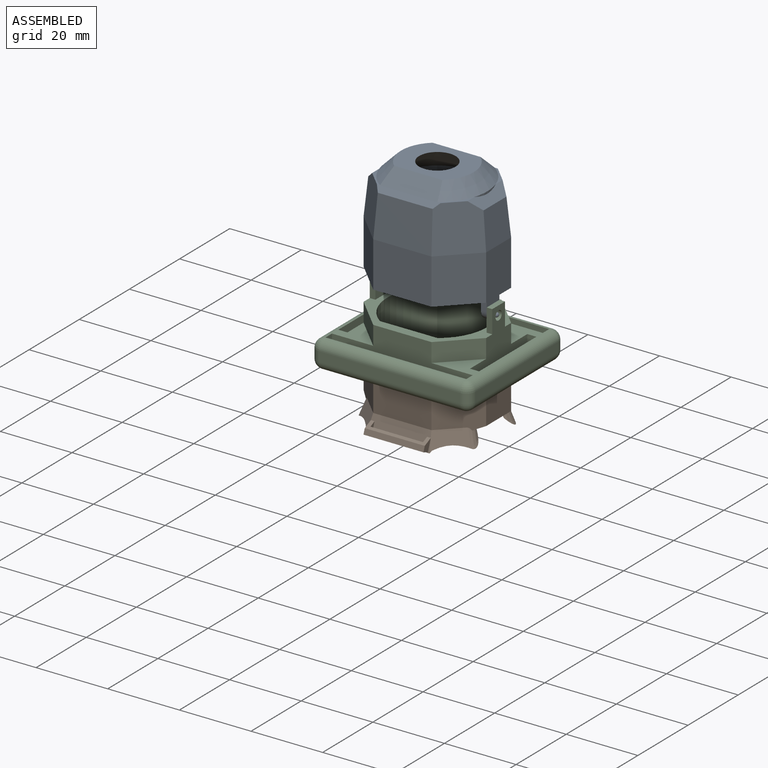
[diagram: assembled view]
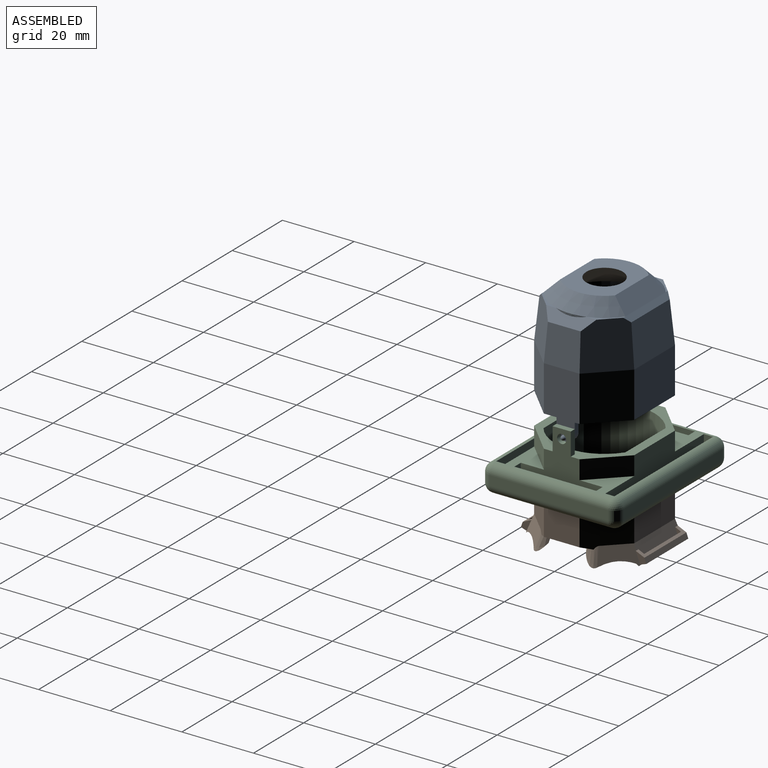
[diagram: assembled view, second angle]
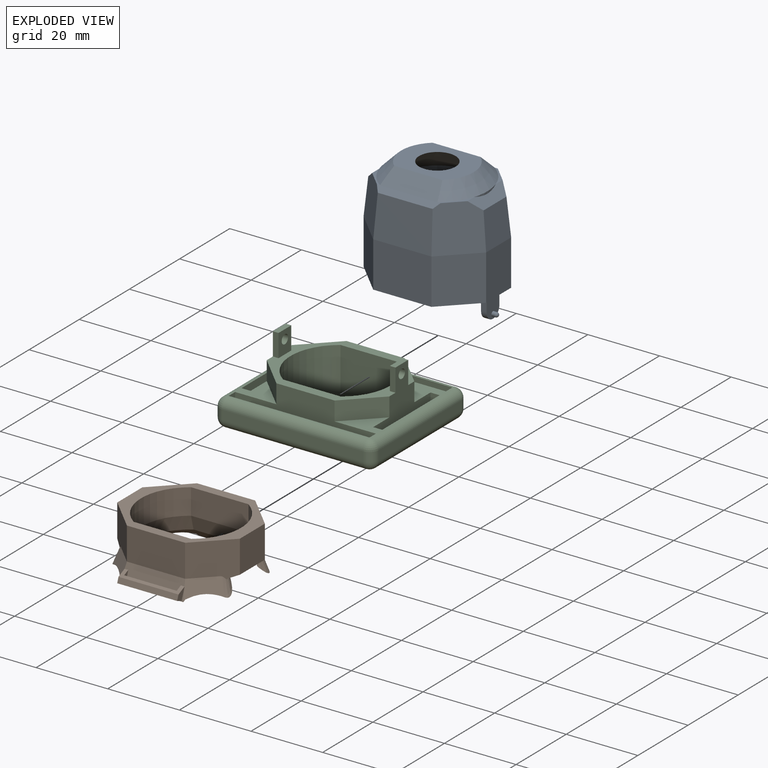
[diagram: exploded view]
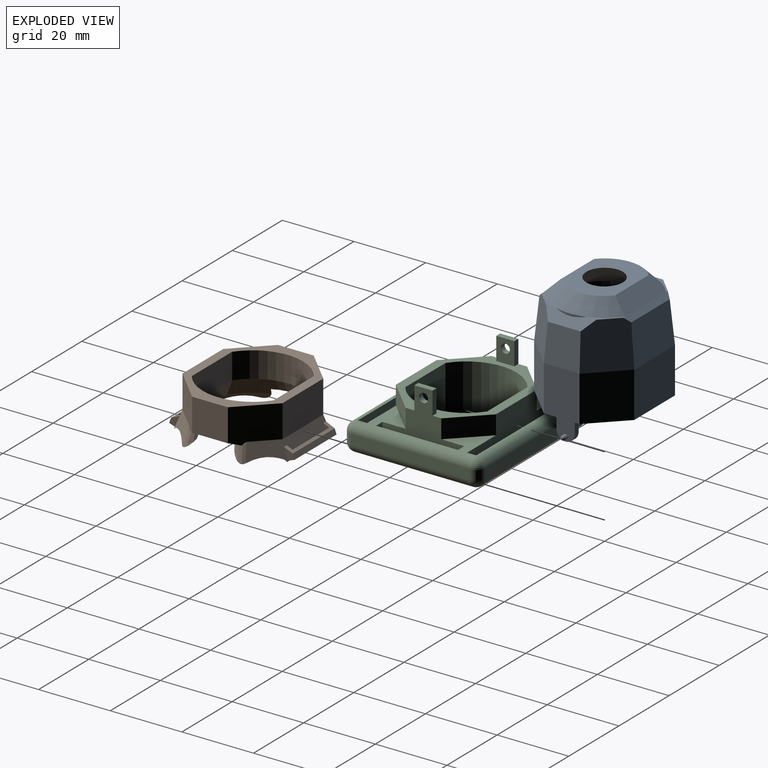
[diagram: exploded view, second angle]
ASSEMBLY  parts=3 mates=2
PART A: 53 faces, bbox 34.4x28.1x35.7 mm
  f0: plane 7.15x5.27mm, normal (0,0,1), area 4.7mm2, adj f28,f33,f35,f48
  f1: plane 7.15x5.27mm, normal (0,0,1), area 4.7mm2, adj f27,f32,f34,f51
  f2: plane 7.15x5.27mm, normal (0,0,1), area 4.7mm2, adj f24,f32,f35,f51
  f3: plane 34.22x27.94mm, normal (0,0,-1), area 221.1mm2, adj f4,f5,f6,f7,f8,f9,f10,f11
  f4: plane 12.7x8.98mm, normal (-0.71,0.71,0), area 161.3mm2, adj f3,f5,f15,f31
  f5: plane 12.7x9.98mm, normal (-1,0,0), area 126.7mm2, adj f3,f4,f6,f30
  f6: plane 12.7x8.98mm, normal (-0.71,-0.71,0), area 161.3mm2, adj f3,f5,f7,f28
  f7: plane 16.26x12.7mm, normal (0,-1,0), area 206.5mm2, adj f3,f6,f8,f26
  f8: plane 12.7x8.98mm, normal (0.71,-0.71,0), area 161.3mm2, adj f3,f7,f9,f24
  f9: plane 12.7x9.98mm, normal (1,0,0), area 126.7mm2, adj f3,f8,f10,f25
  f10: plane 12.7x8.98mm, normal (0.71,0.71,0), area 161.3mm2, adj f3,f9,f15,f27
  f11: plane 22.86x16.06mm, normal (0,1,0), area 367.2mm2, adj f3,f12,f14,f43,f47
  f12: cylinder r=13.97mm len=22.86mm, axis (0,0,-1), area 612mm2, adj f3,f11,f13,f43
  f13: plane 22.86x16.06mm, normal (0,-1,0), area 367.2mm2, adj f3,f12,f14,f43,f47
  f14: cylinder r=13.97mm len=22.86mm, axis (0,0,-1), area 612mm2, adj f3,f11,f13,f47
  f15: plane 16.26x12.7mm, normal (0,1,0), area 206.5mm2, adj f3,f4,f10,f29
  f16: plane 7.15x5.27mm, normal (0,0,1), area 4.7mm2, adj f31,f33,f34,f48
  f17: plane 6.35x5.08mm, normal (-1,0,0), area 29.5mm2, adj f3,f18,f20,f22
  f18: plane 3.81x1.57mm, normal (0,-1,0), area 6mm2, adj f3,f17,f19,f22
  f19: plane 6.35x5.08mm, normal (1,0,0), area 28.2mm2, adj f3,f18,f20,f21,f22
  f20: plane 3.81x1.57mm, normal (0,1,0), area 6mm2, adj f3,f17,f19,f22
  f21: cylinder r=0.64mm len=1.27mm, axis (-1,0,0), area 3.7mm2, adj f19,f23
  f22: cylinder r=2.54mm len=5.08mm, axis (1,0,0), area 12.5mm2, adj f17,f18,f19,f20
  f23: sphere r=0.64mm, area 2.5mm2, adj f21
  f24: plane 12.7x9.45mm, normal (0.7,-0.7,0.1), area 149.7mm2, adj f2,f8,f25,f26,f32,f35
  f25: plane 10.17x9.98mm, normal (1,0,0.1), area 97.7mm2, adj f9,f24,f27,f32
  f26: plane 16.26x11.44mm, normal (0,-1,0.1), area 181.4mm2, adj f7,f24,f28,f35
  f27: plane 12.7x9.45mm, normal (0.7,0.7,0.1), area 149.7mm2, adj f1,f10,f25,f29,f32,f34
  f28: plane 12.7x9.45mm, normal (-0.7,-0.7,0.1), area 149.7mm2, adj f0,f6,f26,f30,f33,f35
  f29: plane 16.26x11.44mm, normal (0,1,0.1), area 181.4mm2, adj f15,f27,f31,f34
  f30: plane 10.17x9.98mm, normal (-1,0,0.1), area 97.7mm2, adj f5,f28,f31,f33
  f31: plane 12.7x9.45mm, normal (-0.7,0.7,0.1), area 149.7mm2, adj f4,f16,f29,f30,f33,f34
  f32: plane 14.01x2.79mm, normal (0.67,0,0.74), area 38.4mm2, adj f1,f2,f24,f25,f27,f44
  f33: plane 14.01x2.79mm, normal (-0.67,0,0.74), area 38.4mm2, adj f0,f16,f28,f30,f31,f45
  f34: plane 17.74x1.4mm, normal (0,0.67,0.74), area 31.1mm2, adj f1,f16,f27,f29,f31,f49
  f35: plane 17.74x1.4mm, normal (0,-0.67,0.74), area 31.1mm2, adj f0,f2,f24,f26,f28,f50
  f36: sphere r=0.64mm, area 2.5mm2, adj f38
  f37: cylinder r=2.54mm len=5.08mm, axis (-1,0,0), area 12.5mm2, adj f39,f40,f41,f42
  f38: cylinder r=0.64mm len=1.27mm, axis (1,0,0), area 3.7mm2, adj f36,f40
  f39: plane 3.81x1.57mm, normal (0,1,0), area 6mm2, adj f3,f37,f40,f42
  f40: plane 6.35x5.08mm, normal (-1,0,0), area 28.2mm2, adj f3,f37,f38,f39,f41
  f41: plane 3.81x1.57mm, normal (0,-1,0), area 6mm2, adj f3,f37,f40,f42
  f42: plane 6.35x5.08mm, normal (1,0,0), area 29.5mm2, adj f3,f37,f39,f41
  f43: plane 22.86x13.97mm, normal (0,0,-1), area 73.6mm2, adj f11,f12,f13,f52
  f44: cylinder r=13.97mm len=8.56mm, axis (0,0,-1), area 3.5mm2, adj f32,f51
  f45: cylinder r=13.97mm len=8.56mm, axis (0,0,-1), area 3.5mm2, adj f33,f48
  f46: plane 20.32x15.24mm, normal (0,0,1), area 196.4mm2, adj f48,f49,f50,f51,f52
  f47: plane 22.86x13.97mm, normal (0,0,-1), area 73.6mm2, adj f11,f13,f14,f52
  f48: cone r=13.97mm half-angle=45deg, axis (0,0,-1), area 117.8mm2, adj f0,f16,f45,f46,f49,f50
  f49: plane 16.23x3.97mm, normal (0,0.71,0.71), area 79.7mm2, adj f34,f46,f48,f51
  f50: plane 16.23x3.97mm, normal (0,-0.71,0.71), area 79.7mm2, adj f35,f46,f48,f51
  f51: cone r=13.97mm half-angle=45deg, axis (0,0,-1), area 117.8mm2, adj f1,f2,f44,f46,f49,f50
  f52: cone r=2.54mm half-angle=45deg, axis (0,0,-1), area 465.8mm2, adj f43,f46,f47
PART B: 51 faces, bbox 36.8x37.6x16.9 mm
  f0: plane 17.76x4.99mm, normal (0,0.94,0.34), area 83.3mm2, adj f1,f2,f3,f4,f10,f21,f22,f26
  f1: plane 3.18x2.93mm, normal (-1,0,0), area 4.6mm2, adj f0,f40,f41,f42
  f2: plane 3.18x2.35mm, normal (-1,0,0), area 3.5mm2, adj f0,f5,f40,f42
  f3: plane 3.18x2.35mm, normal (1,0,0), area 3.5mm2, adj f0,f5,f40,f42
  f4: plane 3.18x2.93mm, normal (1,0,0), area 4.6mm2, adj f0,f40,f41,f42
  f5: plane 14.66x2.01mm, normal (0,-0.94,-0.34), area 31.3mm2, adj f2,f3,f40,f42
  f6: cone r=19.69mm half-angle=45deg, axis (0,0,-1), area 29.4mm2, adj f21,f26,f32,f39
  f7: cone r=19.69mm half-angle=45deg, axis (0,0,-1), area 29.4mm2, adj f23,f29,f31,f37
  f8: plane 10.25x9.3mm, normal (-0.71,0.71,0), area 117.2mm2, adj f10,f14,f20,f21,f35,f39
  f9: plane 10.25x9.3mm, normal (-0.71,-0.71,0), area 117.2mm2, adj f14,f15,f20,f25,f35,f38
  f10: plane 16.26x9.09mm, normal (0,1,0), area 147.8mm2, adj f0,f8,f12,f20
  f11: plane 9.98x9.09mm, normal (1,0,0), area 90.7mm2, adj f12,f13,f20,f34
  f12: plane 10.25x9.3mm, normal (0.71,0.71,0), area 117.2mm2, adj f10,f11,f20,f22,f34,f36
  f13: plane 10.25x9.3mm, normal (0.71,-0.71,0), area 117.2mm2, adj f11,f15,f20,f23,f34,f37
  f14: plane 9.98x9.09mm, normal (-1,0,0), area 90.7mm2, adj f8,f9,f20,f35
  f15: plane 16.26x9.09mm, normal (0,-1,0), area 147.8mm2, adj f9,f13,f20,f24
  f16: cylinder r=13.97mm len=22.86mm, axis (0,0,-1), area 192.4mm2, adj f18,f19,f20,f32
  f17: cylinder r=13.97mm len=22.86mm, axis (0,0,-1), area 192.4mm2, adj f18,f19,f20,f31
  f18: plane 16.06x7.18mm, normal (0,1,0), area 115.4mm2, adj f16,f17,f20,f33
  f19: plane 16.06x7.18mm, normal (0,-1,0), area 115.4mm2, adj f16,f17,f20,f30
  f20: plane 34.22x27.94mm, normal (0,0,1), area 237.1mm2, adj f8,f9,f10,f11,f12,f13,f14,f15
  f21: plane 10.19x10.11mm, normal (-0.66,0.66,0.34), area 36.9mm2, adj f0,f6,f8,f26,f39
  f22: plane 10.19x10.11mm, normal (0.66,0.66,0.34), area 36.9mm2, adj f0,f12,f26,f28,f36
  f23: plane 10.19x10.11mm, normal (0.66,-0.66,0.34), area 36.9mm2, adj f7,f13,f24,f29,f37
  f24: plane 17.76x4.99mm, normal (0,-0.94,0.34), area 83.3mm2, adj f15,f23,f25,f29,f43,f44,f45,f46
  f25: plane 10.19x10.11mm, normal (-0.66,-0.66,0.34), area 36.9mm2, adj f9,f24,f27,f29,f38
  f26: plane 18.33x2.59mm, normal (0,-0.71,-0.71), area 64.5mm2, adj f0,f6,f21,f22,f28,f30
  f27: cone r=19.69mm half-angle=45deg, axis (0,0,-1), area 29.4mm2, adj f25,f29,f32,f38
  f28: cone r=19.69mm half-angle=45deg, axis (0,0,-1), area 29.4mm2, adj f22,f26,f31,f36
  f29: plane 18.33x2.59mm, normal (0,0.71,-0.71), area 64.5mm2, adj f7,f23,f24,f25,f27,f33
  f30: plane 17.19x4.36mm, normal (0,-0.92,-0.38), area 78mm2, adj f19,f26,f31,f32
  f31: cone r=13.97mm half-angle=22.5deg, axis (0,0,-1), area 120.4mm2, adj f7,f17,f28,f30,f33,f34,f36,f37
  f32: cone r=13.97mm half-angle=22.5deg, axis (0,0,-1), area 120.4mm2, adj f6,f16,f27,f30,f33,f35,f38,f39
  f33: plane 17.19x4.36mm, normal (0,0.92,-0.38), area 78mm2, adj f18,f29,f31,f32
  f34: plane 15.15x3.35mm, normal (0.34,0,-0.94), area 30.1mm2, adj f11,f12,f13,f31,f36,f37
  f35: plane 15.15x3.35mm, normal (-0.34,0,-0.94), area 30.1mm2, adj f8,f9,f14,f32,f38,f39
  f36: bspline ~5.29x3.99mm, area 13.4mm2, adj f12,f22,f28,f31,f34
  f37: bspline ~5.29x3.99mm, area 13.4mm2, adj f7,f13,f23,f31,f34
  f38: bspline ~5.29x3.99mm, area 13.4mm2, adj f9,f25,f27,f32,f35
  f39: bspline ~5.29x3.99mm, area 13.4mm2, adj f6,f8,f21,f32,f35
  f40: plane 16.75x2.41mm, normal (0,0.42,0.91), area 18.3mm2, adj f0,f1,f2,f3,f4,f5,f41
  f41: plane 16.75x1.43mm, normal (0,0.94,0.34), area 25.5mm2, adj f1,f4,f40,f42
  f42: plane 16.75x1.78mm, normal (0,0.34,-0.94), area 13mm2, adj f0,f1,f2,f3,f4,f5,f41
  f43: plane 3.18x2.93mm, normal (-1,0,0), area 4.6mm2, adj f24,f48,f49,f50
  f44: plane 3.18x2.35mm, normal (-1,0,0), area 3.5mm2, adj f24,f47,f48,f50
  f45: plane 3.18x2.35mm, normal (1,0,0), area 3.5mm2, adj f24,f47,f48,f50
  f46: plane 3.18x2.93mm, normal (1,0,0), area 4.6mm2, adj f24,f48,f49,f50
  f47: plane 14.66x2.01mm, normal (0,0.94,-0.34), area 31.3mm2, adj f44,f45,f48,f50
  f48: plane 16.75x2.41mm, normal (0,-0.42,0.91), area 18.3mm2, adj f24,f43,f44,f45,f46,f47,f49
  f49: plane 16.75x1.43mm, normal (0,-0.94,0.34), area 25.5mm2, adj f43,f46,f48,f50
  f50: plane 16.75x1.78mm, normal (0,-0.34,-0.94), area 13mm2, adj f24,f43,f44,f45,f46,f47,f49
PART C: 72 faces, bbox 44.4x38.1x19.5 mm
  f0: plane 8.98x8.98mm, normal (-0.71,0.71,0), area 1mm2, adj f2,f6,f15,f71
  f1: plane 8.98x8.98mm, normal (-0.71,-0.71,0), area 1mm2, adj f6,f7,f14,f71
  f2: plane 39.3x13.14mm, normal (0,1,0), area 392.8mm2, adj f0,f4,f11,f15,f16,f17,f18,f21
  f3: plane 22.86x19.49mm, normal (1,0,0), area 258.5mm2, adj f4,f5,f13,f16,f17,f19,f20,f23
  f4: plane 8.98x8.98mm, normal (0.71,0.71,0), area 1mm2, adj f2,f3,f16,f71
  f5: plane 8.98x8.98mm, normal (0.71,-0.71,0), area 1mm2, adj f3,f7,f31,f71
  f6: plane 22.86x19.49mm, normal (-1,0,0), area 258.5mm2, adj f0,f1,f11,f12,f14,f15,f17,f21
  f7: plane 39.3x13.14mm, normal (0,-1,0), area 392.8mm2, adj f1,f5,f12,f13,f14,f17,f22,f23
  f8: cylinder r=13.97mm len=22.86mm, axis (0,0,-1), area 351.7mm2, adj f10,f17,f25,f71
  f9: cylinder r=13.97mm len=22.86mm, axis (0,0,-1), area 351.7mm2, adj f10,f17,f25,f71
  f10: plane 16.06x13.14mm, normal (0,-1,0), area 211mm2, adj f8,f9,f17,f71
  f11: plane 11.52x8.98mm, normal (0,0,1), area 46.8mm2, adj f2,f6,f21,f43,f58
  f12: plane 11.52x8.98mm, normal (0,0,1), area 46.8mm2, adj f6,f7,f22,f44,f58
  f13: plane 11.52x8.98mm, normal (0,0,1), area 46.8mm2, adj f3,f7,f19,f23,f55
  f14: plane 11.52x8.98mm, normal (0,0,-1), area 46.8mm2, adj f1,f6,f7,f44,f54
  f15: plane 11.52x8.98mm, normal (0,0,-1), area 46.8mm2, adj f0,f2,f6,f43,f54
  f16: plane 11.52x8.98mm, normal (0,0,-1), area 46.8mm2, adj f2,f3,f4,f20,f51
  f17: plane 34.22x27.94mm, normal (0,0,1), area 221.1mm2, adj f2,f3,f6,f7,f8,f9,f10,f21
  f18: plane 7.78x2.54mm, normal (-1,0,0), area 19.8mm2, adj f2,f36,f51,f55
  f19: plane 7.78x2.54mm, normal (0,1,0), area 19.8mm2, adj f3,f13,f31,f34
  f20: plane 7.78x2.54mm, normal (0,-1,0), area 19.8mm2, adj f3,f16,f32,f34
  f21: plane 8.98x8.98mm, normal (-0.71,0.71,0), area 67mm2, adj f2,f6,f11,f17
  f22: plane 8.98x8.98mm, normal (-0.71,-0.71,0), area 67mm2, adj f6,f7,f12,f17
  f23: plane 8.98x8.98mm, normal (0.71,-0.71,0), area 67mm2, adj f3,f7,f13,f17
  f24: plane 8.98x8.98mm, normal (0.71,0.71,0), area 67mm2, adj f2,f3,f17,f32
  f25: plane 16.06x13.14mm, normal (0,1,0), area 211mm2, adj f8,f9,f17,f71
  f26: plane 6.35x5.08mm, normal (-1,0,0), area 27.2mm2, adj f17,f27,f28,f29,f30
  f27: plane 6.35x1.57mm, normal (0,-1,0), area 10mm2, adj f3,f17,f26,f29
  f28: plane 6.35x1.57mm, normal (0,1,0), area 10mm2, adj f3,f17,f26,f29
  f29: plane 5.08x1.57mm, normal (0,0,1), area 8mm2, adj f3,f26,f27,f28
  f30: cylinder r=1.27mm len=2.54mm, axis (1,0,0), area 12.5mm2, adj f3,f26
  f31: plane 11.52x8.98mm, normal (0,0,-1), area 46.8mm2, adj f3,f5,f7,f19,f51
  f32: plane 11.52x8.98mm, normal (0,0,1), area 46.8mm2, adj f2,f3,f20,f24,f55
  f33: plane 33.02x2.7mm, normal (1,0,0), area 89.2mm2, adj f51,f55,f60,f63
  f34: plane 22.86x7.78mm, normal (-1,0,0), area 177.9mm2, adj f19,f20,f51,f55
  f35: plane 39.3x2.7mm, normal (0,1,0), area 106.2mm2, adj f53,f57,f60,f66
  f36: plane 39.3x7.78mm, normal (0,-1,0), area 305.8mm2, adj f18,f42,f53,f57
  f37: plane 7.78x2.54mm, normal (-1,0,0), area 19.8mm2, adj f7,f39,f51,f55
  f38: plane 39.3x2.7mm, normal (0,-1,0), area 106.2mm2, adj f52,f56,f63,f69
  f39: plane 39.3x7.78mm, normal (0,1,0), area 305.8mm2, adj f37,f45,f52,f56
  f40: plane 22.86x7.78mm, normal (1,0,0), area 177.9mm2, adj f43,f44,f54,f58
  f41: plane 33.02x2.7mm, normal (-1,0,0), area 89.2mm2, adj f54,f58,f66,f69
  f42: plane 7.78x2.54mm, normal (1,0,0), area 19.8mm2, adj f2,f36,f54,f58
  f43: plane 7.78x2.54mm, normal (0,-1,0), area 19.8mm2, adj f6,f11,f15,f40
  f44: plane 7.78x2.54mm, normal (0,1,0), area 19.8mm2, adj f6,f12,f14,f40
  f45: plane 7.78x2.54mm, normal (1,0,0), area 19.8mm2, adj f7,f39,f54,f58
  f46: plane 6.35x5.08mm, normal (1,0,0), area 27.2mm2, adj f17,f47,f48,f49,f50
  f47: plane 6.35x1.57mm, normal (0,-1,0), area 10mm2, adj f6,f17,f46,f49
  f48: plane 6.35x1.57mm, normal (0,1,0), area 10mm2, adj f6,f17,f46,f49
  f49: plane 5.08x1.57mm, normal (0,0,1), area 8mm2, adj f6,f46,f47,f48
  f50: cylinder r=1.27mm len=2.54mm, axis (-1,0,0), area 12.5mm2, adj f6,f46
  f51: cylinder r=2.54mm len=33.02mm, axis (0,1,0), area 131.7mm2, adj f16,f18,f31,f33,f34,f37,f59,f62
  f52: cylinder r=2.54mm len=39.3mm, axis (1,0,0), area 156.8mm2, adj f38,f39,f62,f68
  f53: cylinder r=2.54mm len=39.3mm, axis (1,0,0), area 156.8mm2, adj f35,f36,f59,f65
  f54: cylinder r=2.54mm len=33.02mm, axis (0,1,0), area 131.7mm2, adj f14,f15,f40,f41,f42,f45,f65,f68
  f55: cylinder r=2.54mm len=33.02mm, axis (0,-1,0), area 131.7mm2, adj f13,f18,f32,f33,f34,f37,f61,f64
  f56: cylinder r=2.54mm len=39.3mm, axis (-1,0,0), area 156.8mm2, adj f38,f39,f64,f70
  f57: cylinder r=2.54mm len=39.3mm, axis (-1,0,0), area 156.8mm2, adj f35,f36,f61,f67
  f58: cylinder r=2.54mm len=33.02mm, axis (0,-1,0), area 131.7mm2, adj f11,f12,f40,f41,f42,f45,f67,f70
  f59: sphere r=2.54mm, area 10.1mm2, adj f51,f53,f60
  f60: cylinder r=2.54mm len=2.7mm, axis (0,0,-1), area 10.8mm2, adj f33,f35,f59,f61
  f61: sphere r=2.54mm, area 10.1mm2, adj f55,f57,f60
  f62: sphere r=2.54mm, area 10.1mm2, adj f51,f52,f63
  f63: cylinder r=2.54mm len=2.7mm, axis (0,0,-1), area 10.8mm2, adj f33,f38,f62,f64
  f64: sphere r=2.54mm, area 10.1mm2, adj f55,f56,f63
  f65: sphere r=2.54mm, area 10.1mm2, adj f53,f54,f66
  f66: cylinder r=2.54mm len=2.7mm, axis (0,0,-1), area 10.8mm2, adj f35,f41,f65,f67
  f67: sphere r=2.54mm, area 10.1mm2, adj f57,f58,f66
  f68: sphere r=2.54mm, area 10.1mm2, adj f52,f54,f69
  f69: cylinder r=2.54mm len=2.7mm, axis (0,0,-1), area 10.8mm2, adj f38,f41,f68,f70
  f70: sphere r=2.54mm, area 10.1mm2, adj f56,f58,f69
  f71: plane 34.22x27.94mm, normal (0,0,-1), area 237.1mm2, adj f0,f1,f2,f3,f4,f5,f6,f7
PLACE A at identity
PLACE B t=(0,0,-31.12)mm
PLACE C t=(0,0,-31.12)mm
MATE fastened B.f15 <-> C.f7  axis (0,-1,0) through (0,-13.97,-22.03)mm
MATE revolute C.f50 <-> A.f38  axis (1,0,0) through (-15.54,0,-5.08)mm
